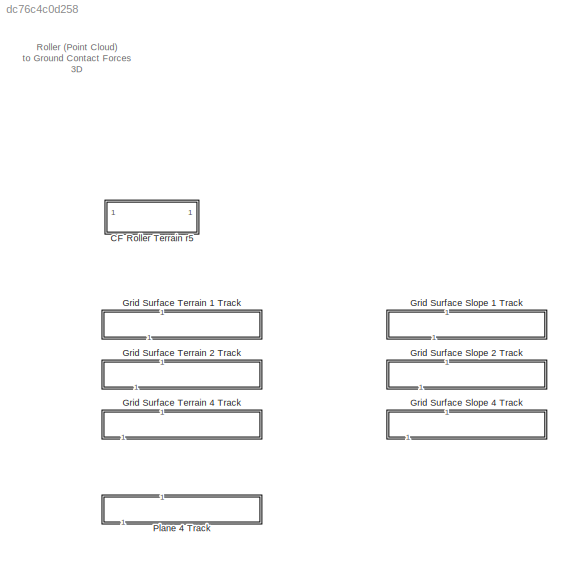
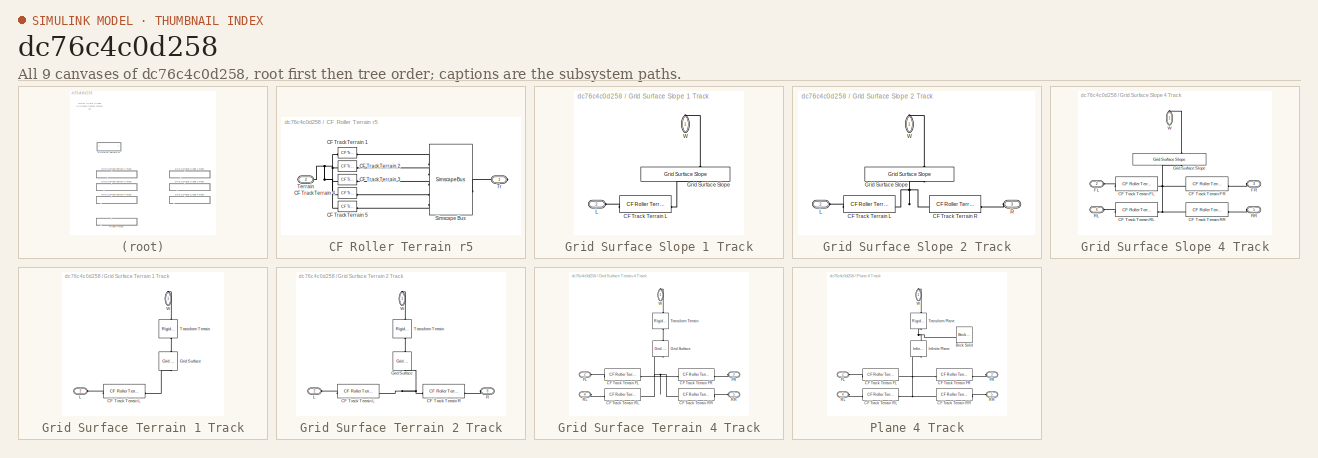
[diagram: thumbnail index - all 9 canvases of the model, root first then tree order]
MODEL slx_dc76c4c0d258
KIND library
CONFIG SolverName = VariableStepAuto
BLOCK [SubSystem] CF Roller Terrain r5
BLOCK [Reference] CF Roller Terrain r5/CF Track Terrain 1  REF=sm_trackV_lib_terrain_contact_elem/CF Track Terrain
  LibrarySourceBlock = sm_chain_drive_lib/CF_Road
  NameLocation = right
  SourceBlock = sm_trackV_lib_terrain_contact_elem/CF Track Terrain
  SourceType = Contact Force, Track Segment to Terrain
BLOCK [Reference] CF Roller Terrain r5/CF Track Terrain 2  REF=sm_trackV_lib_terrain_contact_elem/CF Track Terrain
  LibrarySourceBlock = sm_chain_drive_lib/CF_Road
  NameLocation = right
  SourceBlock = sm_trackV_lib_terrain_contact_elem/CF Track Terrain
  SourceType = Contact Force, Track Segment to Terrain
BLOCK [Reference] CF Roller Terrain r5/CF Track Terrain 3  REF=sm_trackV_lib_terrain_contact_elem/CF Track Terrain
  LibrarySourceBlock = sm_chain_drive_lib/CF_Road
  NameLocation = right
  SourceBlock = sm_trackV_lib_terrain_contact_elem/CF Track Terrain
  SourceType = Contact Force, Track Segment to Terrain
BLOCK [Reference] CF Roller Terrain r5/CF Track Terrain 4  REF=sm_trackV_lib_terrain_contact_elem/CF Track Terrain
  LibrarySourceBlock = sm_chain_drive_lib/CF_Road
  NameLocation = right
  SourceBlock = sm_trackV_lib_terrain_contact_elem/CF Track Terrain
  SourceType = Contact Force, Track Segment to Terrain
BLOCK [Reference] CF Roller Terrain r5/CF Track Terrain 5  REF=sm_trackV_lib_terrain_contact_elem/CF Track Terrain
  LibrarySourceBlock = sm_chain_drive_lib/CF_Road
  NameLocation = right
  SourceBlock = sm_trackV_lib_terrain_contact_elem/CF Track Terrain
  SourceType = Contact Force, Track Segment to Terrain
BLOCK [SimscapeBus] CF Roller Terrain r5/Simscape Bus
  ConnectionType = Bus: CBO_Roller5
  HierarchyStrings = P1;P2;P3;P4;P5
BLOCK [PMIOPort] CF Roller Terrain r5/Terrain
  Port = 2
  Side = Left
BLOCK [PMIOPort] CF Roller Terrain r5/Tr
  Side = Right
BLOCK [SubSystem] Grid Surface Slope 1 Track
  NameLocation = right
BLOCK [Reference] Grid Surface Slope 1 Track/CF Track Terrain L  REF=$bdroot/CF Roller Terrain r5
  SourceBlock = $bdroot/CF Roller Terrain r5
  SourceType = Contact Forces, Rollers to Terrain
BLOCK [Reference] Grid Surface Slope 1 Track/Grid Surface Slope  REF=sm_excv_scene_lib/Grid Surface  (lib defined in slx_1cf3237a0358)
Slope
  NameLocation = right
  SourceBlock = sm_excv_scene_lib/Grid Surface\nSlope
  SourceType = Slope
BLOCK [PMIOPort] Grid Surface Slope 1 Track/L
  Port = 2
  Side = Left
BLOCK [PMIOPort] Grid Surface Slope 1 Track/W
  NameLocation = left
  Side = Right
BLOCK [SubSystem] Grid Surface Slope 2 Track
  NameLocation = right
BLOCK [Reference] Grid Surface Slope 2 Track/CF Track Terrain L  REF=$bdroot/CF Roller Terrain r5
  SourceBlock = $bdroot/CF Roller Terrain r5
  SourceType = Contact Forces, Rollers to Terrain
BLOCK [Reference] Grid Surface Slope 2 Track/CF Track Terrain R  REF=$bdroot/CF Roller Terrain r5
  SourceBlock = $bdroot/CF Roller Terrain r5
  SourceType = Contact Forces, Rollers to Terrain
BLOCK [Reference] Grid Surface Slope 2 Track/Grid Surface Slope  REF=sm_excv_scene_lib/Grid Surface  (lib defined in slx_1cf3237a0358)
Slope
  NameLocation = right
  SourceBlock = sm_excv_scene_lib/Grid Surface\nSlope
  SourceType = Slope
BLOCK [PMIOPort] Grid Surface Slope 2 Track/L
  Port = 2
  Side = Left
BLOCK [PMIOPort] Grid Surface Slope 2 Track/R
  Port = 3
  Side = Left
BLOCK [PMIOPort] Grid Surface Slope 2 Track/W
  NameLocation = left
  Side = Right
BLOCK [SubSystem] Grid Surface Slope 4 Track
  NameLocation = right
BLOCK [Reference] Grid Surface Slope 4 Track/CF Track Terrain FL  REF=$bdroot/CF Roller Terrain r5
  SourceBlock = $bdroot/CF Roller Terrain r5
  SourceType = Contact Forces, Rollers to Terrain
BLOCK [Reference] Grid Surface Slope 4 Track/CF Track Terrain FR  REF=$bdroot/CF Roller Terrain r5
  SourceBlock = $bdroot/CF Roller Terrain r5
  SourceType = Contact Forces, Rollers to Terrain
BLOCK [Reference] Grid Surface Slope 4 Track/CF Track Terrain RL  REF=$bdroot/CF Roller Terrain r5
  SourceBlock = $bdroot/CF Roller Terrain r5
  SourceType = Contact Forces, Rollers to Terrain
BLOCK [Reference] Grid Surface Slope 4 Track/CF Track Terrain RR  REF=$bdroot/CF Roller Terrain r5
  SourceBlock = $bdroot/CF Roller Terrain r5
  SourceType = Contact Forces, Rollers to Terrain
BLOCK [PMIOPort] Grid Surface Slope 4 Track/FL
  Port = 2
  Side = Left
BLOCK [PMIOPort] Grid Surface Slope 4 Track/FR
  Port = 3
  Side = Left
BLOCK [Reference] Grid Surface Slope 4 Track/Grid Surface Slope  REF=sm_excv_scene_lib/Grid Surface  (lib defined in slx_1cf3237a0358)
Slope
  NameLocation = right
  SourceBlock = sm_excv_scene_lib/Grid Surface\nSlope
  SourceType = Slope
BLOCK [PMIOPort] Grid Surface Slope 4 Track/RL
  Port = 4
  Side = Left
BLOCK [PMIOPort] Grid Surface Slope 4 Track/RR
  Port = 5
  Side = Left
BLOCK [PMIOPort] Grid Surface Slope 4 Track/W
  NameLocation = left
  Side = Right
BLOCK [SubSystem] Grid Surface Terrain 1 Track
  NameLocation = right
BLOCK [Reference] Grid Surface Terrain 1 Track/CF Track Terrain L  REF=$bdroot/CF Roller Terrain r5
  SourceBlock = $bdroot/CF Roller Terrain r5
  SourceType = Contact Forces, Rollers to Terrain
BLOCK [Reference] Grid Surface Terrain 1 Track/Grid Surface  REF=sm_lib/Curves and Surfaces/Grid Surface
  NameLocation = left
  SourceBlock = sm_lib/Curves and Surfaces/Grid Surface
  SourceType = Grid Surface
BLOCK [PMIOPort] Grid Surface Terrain 1 Track/L
  Port = 2
  Side = Left
BLOCK [Reference] Grid Surface Terrain 1 Track/Transform Terrain  REF=sm_lib/Frames and
Transforms/Rigid
Transform
  NameLocation = left
  SourceBlock = sm_lib/Frames and\nTransforms/Rigid\nTransform
  SourceType = Rigid\nTransform
BLOCK [PMIOPort] Grid Surface Terrain 1 Track/W
  NameLocation = left
  Side = Right
BLOCK [SubSystem] Grid Surface Terrain 2 Track
  NameLocation = right
BLOCK [Reference] Grid Surface Terrain 2 Track/CF Track Terrain L  REF=$bdroot/CF Roller Terrain r5
  SourceBlock = $bdroot/CF Roller Terrain r5
  SourceType = Contact Forces, Rollers to Terrain
BLOCK [Reference] Grid Surface Terrain 2 Track/CF Track Terrain R  REF=$bdroot/CF Roller Terrain r5
  SourceBlock = $bdroot/CF Roller Terrain r5
  SourceType = Contact Forces, Rollers to Terrain
BLOCK [Reference] Grid Surface Terrain 2 Track/Grid Surface  REF=sm_lib/Curves and Surfaces/Grid Surface
  NameLocation = left
  SourceBlock = sm_lib/Curves and Surfaces/Grid Surface
  SourceType = Grid Surface
BLOCK [PMIOPort] Grid Surface Terrain 2 Track/L
  Port = 2
  Side = Left
BLOCK [PMIOPort] Grid Surface Terrain 2 Track/R
  Port = 3
  Side = Left
BLOCK [Reference] Grid Surface Terrain 2 Track/Transform Terrain  REF=sm_lib/Frames and
Transforms/Rigid
Transform
  NameLocation = left
  SourceBlock = sm_lib/Frames and\nTransforms/Rigid\nTransform
  SourceType = Rigid\nTransform
BLOCK [PMIOPort] Grid Surface Terrain 2 Track/W
  NameLocation = left
  Side = Right
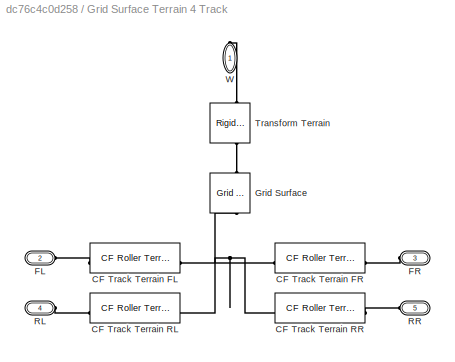
BLOCK [SubSystem] Grid Surface Terrain 4 Track
  NameLocation = right
BLOCK [Reference] Grid Surface Terrain 4 Track/CF Track Terrain FL  REF=$bdroot/CF Roller Terrain r5
  SourceBlock = $bdroot/CF Roller Terrain r5
  SourceType = Contact Forces, Rollers to Terrain
BLOCK [Reference] Grid Surface Terrain 4 Track/CF Track Terrain FR  REF=$bdroot/CF Roller Terrain r5
  SourceBlock = $bdroot/CF Roller Terrain r5
  SourceType = Contact Forces, Rollers to Terrain
BLOCK [Reference] Grid Surface Terrain 4 Track/CF Track Terrain RL  REF=$bdroot/CF Roller Terrain r5
  SourceBlock = $bdroot/CF Roller Terrain r5
  SourceType = Contact Forces, Rollers to Terrain
BLOCK [Reference] Grid Surface Terrain 4 Track/CF Track Terrain RR  REF=$bdroot/CF Roller Terrain r5
  SourceBlock = $bdroot/CF Roller Terrain r5
  SourceType = Contact Forces, Rollers to Terrain
BLOCK [PMIOPort] Grid Surface Terrain 4 Track/FL
  Port = 2
  Side = Left
BLOCK [PMIOPort] Grid Surface Terrain 4 Track/FR
  Port = 3
  Side = Left
BLOCK [Reference] Grid Surface Terrain 4 Track/Grid Surface  REF=sm_lib/Curves and Surfaces/Grid Surface
  NameLocation = left
  SourceBlock = sm_lib/Curves and Surfaces/Grid Surface
  SourceType = Grid Surface
BLOCK [PMIOPort] Grid Surface Terrain 4 Track/RL
  Port = 4
  Side = Left
BLOCK [PMIOPort] Grid Surface Terrain 4 Track/RR
  Port = 5
  Side = Left
BLOCK [Reference] Grid Surface Terrain 4 Track/Transform Terrain  REF=sm_lib/Frames and
Transforms/Rigid
Transform
  NameLocation = left
  SourceBlock = sm_lib/Frames and\nTransforms/Rigid\nTransform
  SourceType = Rigid\nTransform
BLOCK [PMIOPort] Grid Surface Terrain 4 Track/W
  NameLocation = left
  Side = Right
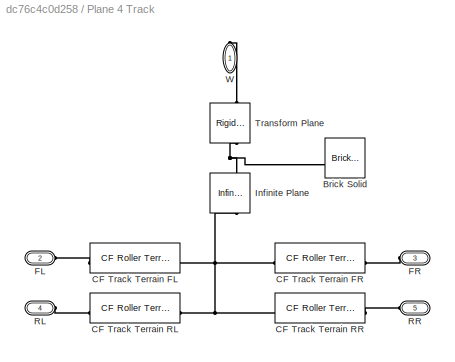
BLOCK [SubSystem] Plane 4 Track
  NameLocation = right
BLOCK [Reference] Plane 4 Track/Brick Solid  REF=sm_lib/Body Elements/Brick Solid
  NameLocation = top
  SourceBlock = sm_lib/Body Elements/Brick Solid
  SourceType = Brick Solid
BLOCK [Reference] Plane 4 Track/CF Track Terrain FL  REF=$bdroot/CF Roller Terrain r5
  SourceBlock = $bdroot/CF Roller Terrain r5
  SourceType = Contact Forces, Rollers to Terrain
BLOCK [Reference] Plane 4 Track/CF Track Terrain FR  REF=$bdroot/CF Roller Terrain r5
  SourceBlock = $bdroot/CF Roller Terrain r5
  SourceType = Contact Forces, Rollers to Terrain
BLOCK [Reference] Plane 4 Track/CF Track Terrain RL  REF=$bdroot/CF Roller Terrain r5
  SourceBlock = $bdroot/CF Roller Terrain r5
  SourceType = Contact Forces, Rollers to Terrain
BLOCK [Reference] Plane 4 Track/CF Track Terrain RR  REF=$bdroot/CF Roller Terrain r5
  SourceBlock = $bdroot/CF Roller Terrain r5
  SourceType = Contact Forces, Rollers to Terrain
BLOCK [PMIOPort] Plane 4 Track/FL
  Port = 2
  Side = Left
BLOCK [PMIOPort] Plane 4 Track/FR
  Port = 3
  Side = Left
BLOCK [Reference] Plane 4 Track/Infinite Plane  REF=sm_lib/Curves and Surfaces/Infinite Plane
  NameLocation = right
  SourceBlock = sm_lib/Curves and Surfaces/Infinite Plane
  SourceType = Infinite Plane
BLOCK [PMIOPort] Plane 4 Track/RL
  Port = 4
  Side = Left
BLOCK [PMIOPort] Plane 4 Track/RR
  Port = 5
  Side = Left
BLOCK [Reference] Plane 4 Track/Transform Plane  REF=sm_lib/Frames and
Transforms/Rigid
Transform
  NameLocation = right
  SourceBlock = sm_lib/Frames and\nTransforms/Rigid\nTransform
  SourceType = Rigid\nTransform
BLOCK [PMIOPort] Plane 4 Track/W
  NameLocation = left
  Side = Right
ANNOTATION (root): Roller (Point Cloud) to Ground Contact Forces 3D
PNET net1: CF Roller Terrain r5/CF Track Terrain 1:LConn1 -- CF Roller Terrain r5/CF Track Terrain 2:LConn1 -- CF Roller Terrain r5/CF Track Terrain 3:LConn1 -- CF Roller Terrain r5/CF Track Terrain 4:LConn1 -- CF Roller Terrain r5/CF Track Terrain 5:LConn1 -- CF Roller Terrain r5/Terrain:RConn1
PLINE CF Roller Terrain r5/CF Track Terrain 1:RConn1 -- CF Roller Terrain r5/Simscape Bus:LConn1
PLINE CF Roller Terrain r5/CF Track Terrain 2:RConn1 -- CF Roller Terrain r5/Simscape Bus:LConn2
PLINE CF Roller Terrain r5/CF Track Terrain 3:RConn1 -- CF Roller Terrain r5/Simscape Bus:LConn3
PLINE CF Roller Terrain r5/CF Track Terrain 4:RConn1 -- CF Roller Terrain r5/Simscape Bus:LConn4
PLINE CF Roller Terrain r5/CF Track Terrain 5:RConn1 -- CF Roller Terrain r5/Simscape Bus:LConn5
PLINE CF Roller Terrain r5/Simscape Bus:RConn1 -- CF Roller Terrain r5/Tr:RConn1
PLINE Grid Surface Slope 1 Track/CF Track Terrain L:LConn1 -- Grid Surface Slope 1 Track/Grid Surface Slope:LConn1
PLINE Grid Surface Slope 1 Track/CF Track Terrain L:RConn1 -- Grid Surface Slope 1 Track/L:RConn1
PLINE Grid Surface Slope 1 Track/Grid Surface Slope:RConn1 -- Grid Surface Slope 1 Track/W:RConn1
PNET net2: Grid Surface Slope 2 Track/CF Track Terrain L:LConn1 -- Grid Surface Slope 2 Track/CF Track Terrain R:LConn1 -- Grid Surface Slope 2 Track/Grid Surface Slope:LConn1
PLINE Grid Surface Slope 2 Track/CF Track Terrain L:RConn1 -- Grid Surface Slope 2 Track/L:RConn1
PLINE Grid Surface Slope 2 Track/CF Track Terrain R:RConn1 -- Grid Surface Slope 2 Track/R:RConn1
PLINE Grid Surface Slope 2 Track/Grid Surface Slope:RConn1 -- Grid Surface Slope 2 Track/W:RConn1
PNET net3: Grid Surface Slope 4 Track/CF Track Terrain FL:LConn1 -- Grid Surface Slope 4 Track/CF Track Terrain FR:LConn1 -- Grid Surface Slope 4 Track/CF Track Terrain RL:LConn1 -- Grid Surface Slope 4 Track/CF Track Terrain RR:LConn1 -- Grid Surface Slope 4 Track/Grid Surface Slope:LConn1
PLINE Grid Surface Slope 4 Track/CF Track Terrain FL:RConn1 -- Grid Surface Slope 4 Track/FL:RConn1
PLINE Grid Surface Slope 4 Track/CF Track Terrain FR:RConn1 -- Grid Surface Slope 4 Track/FR:RConn1
PLINE Grid Surface Slope 4 Track/CF Track Terrain RL:RConn1 -- Grid Surface Slope 4 Track/RL:RConn1
PLINE Grid Surface Slope 4 Track/CF Track Terrain RR:RConn1 -- Grid Surface Slope 4 Track/RR:RConn1
PLINE Grid Surface Slope 4 Track/Grid Surface Slope:RConn1 -- Grid Surface Slope 4 Track/W:RConn1
PLINE Grid Surface Terrain 1 Track/CF Track Terrain L:LConn1 -- Grid Surface Terrain 1 Track/Grid Surface:RConn1
PLINE Grid Surface Terrain 1 Track/CF Track Terrain L:RConn1 -- Grid Surface Terrain 1 Track/L:RConn1
PLINE Grid Surface Terrain 1 Track/Grid Surface:LConn1 -- Grid Surface Terrain 1 Track/Transform Terrain:RConn1
PLINE Grid Surface Terrain 1 Track/Transform Terrain:LConn1 -- Grid Surface Terrain 1 Track/W:RConn1
PNET net4: Grid Surface Terrain 2 Track/CF Track Terrain L:LConn1 -- Grid Surface Terrain 2 Track/CF Track Terrain R:LConn1 -- Grid Surface Terrain 2 Track/Grid Surface:RConn1
PLINE Grid Surface Terrain 2 Track/CF Track Terrain L:RConn1 -- Grid Surface Terrain 2 Track/L:RConn1
PLINE Grid Surface Terrain 2 Track/CF Track Terrain R:RConn1 -- Grid Surface Terrain 2 Track/R:RConn1
PLINE Grid Surface Terrain 2 Track/Grid Surface:LConn1 -- Grid Surface Terrain 2 Track/Transform Terrain:RConn1
PLINE Grid Surface Terrain 2 Track/Transform Terrain:LConn1 -- Grid Surface Terrain 2 Track/W:RConn1
PNET net5: Grid Surface Terrain 4 Track/CF Track Terrain FL:LConn1 -- Grid Surface Terrain 4 Track/CF Track Terrain FR:LConn1 -- Grid Surface Terrain 4 Track/CF Track Terrain RL:LConn1 -- Grid Surface Terrain 4 Track/CF Track Terrain RR:LConn1 -- Grid Surface Terrain 4 Track/Grid Surface:RConn1
PLINE Grid Surface Terrain 4 Track/CF Track Terrain FL:RConn1 -- Grid Surface Terrain 4 Track/FL:RConn1
PLINE Grid Surface Terrain 4 Track/CF Track Terrain FR:RConn1 -- Grid Surface Terrain 4 Track/FR:RConn1
PLINE Grid Surface Terrain 4 Track/CF Track Terrain RL:RConn1 -- Grid Surface Terrain 4 Track/RL:RConn1
PLINE Grid Surface Terrain 4 Track/CF Track Terrain RR:RConn1 -- Grid Surface Terrain 4 Track/RR:RConn1
PLINE Grid Surface Terrain 4 Track/Grid Surface:LConn1 -- Grid Surface Terrain 4 Track/Transform Terrain:RConn1
PLINE Grid Surface Terrain 4 Track/Transform Terrain:LConn1 -- Grid Surface Terrain 4 Track/W:RConn1
PNET net6: Plane 4 Track/Brick Solid:LConn1 -- Plane 4 Track/Infinite Plane:LConn1 -- Plane 4 Track/Transform Plane:RConn1
PNET net7: Plane 4 Track/CF Track Terrain FL:LConn1 -- Plane 4 Track/CF Track Terrain FR:LConn1 -- Plane 4 Track/CF Track Terrain RL:LConn1 -- Plane 4 Track/CF Track Terrain RR:LConn1 -- Plane 4 Track/Infinite Plane:RConn1
PLINE Plane 4 Track/CF Track Terrain FL:RConn1 -- Plane 4 Track/FL:RConn1
PLINE Plane 4 Track/CF Track Terrain FR:RConn1 -- Plane 4 Track/FR:RConn1
PLINE Plane 4 Track/CF Track Terrain RL:RConn1 -- Plane 4 Track/RL:RConn1
PLINE Plane 4 Track/CF Track Terrain RR:RConn1 -- Plane 4 Track/RR:RConn1
PLINE Plane 4 Track/Transform Plane:LConn1 -- Plane 4 Track/W:RConn1
note: PNET lines group multi-terminal physical nets as a canonical sorted terminal list (undirected conserving connections); 2-terminal nets keep the pairwise PLINE form
